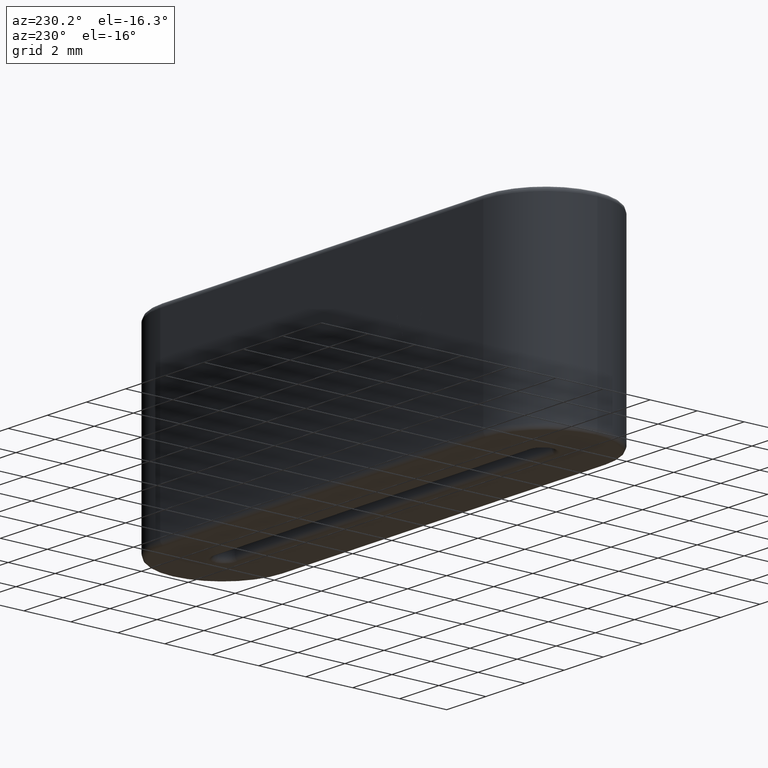
[diagram: clean part render]
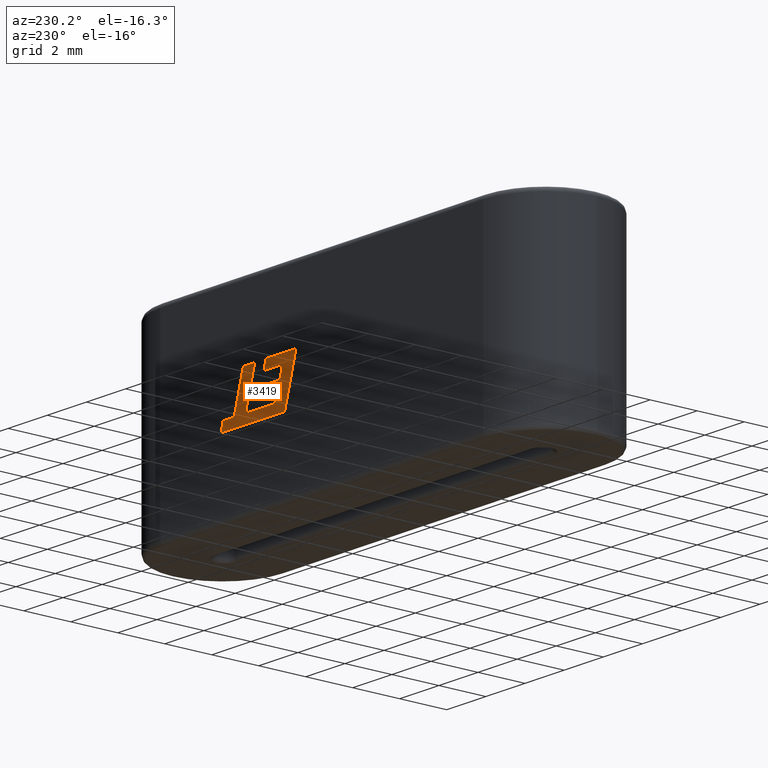
[diagram: same view with one face highlighted and labeled with its STEP entity id]
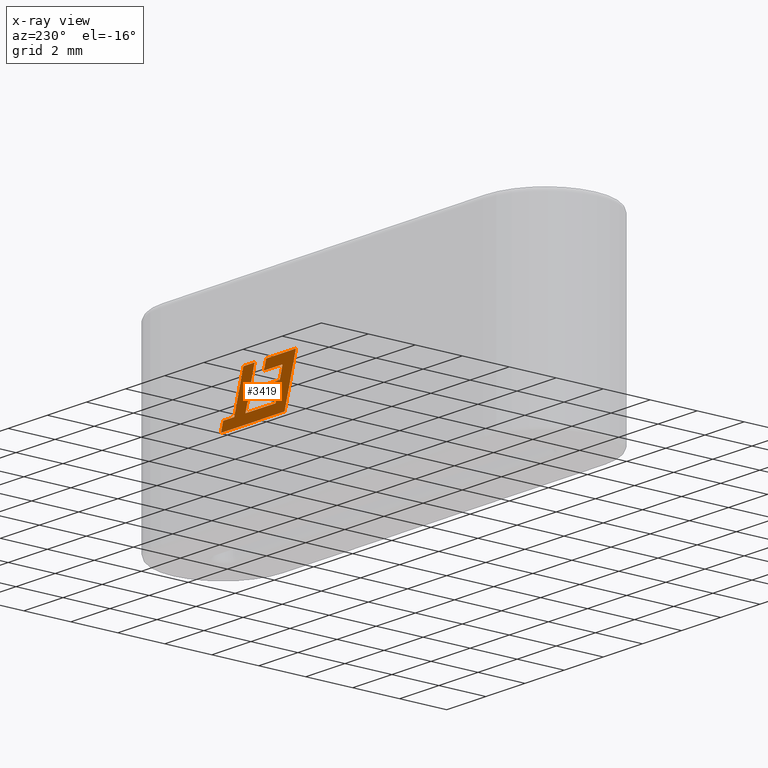
[diagram: x-ray of the same camera — body ghosted, the highlighted face saturated]
A machine part, auxiliary view. The second image highlights one B-rep face of the part: STEP entity #3419.
The next image is the same camera in x-ray: the body ghosted, the highlighted face saturated — about 0% of this face is hidden behind the body in this view.
In plain terms, the highlighted planar face has unit normal (-0, 1, 0).
Its self-contained STEP definition (entity closure, byte-faithful):
#4 = VECTOR ( 'NONE', #315, 1000.000000000000114 ) ;
#39 = EDGE_CURVE ( 'NONE', #2804, #2874, #381, .T. ) ;
#242 = CARTESIAN_POINT ( 'NONE',  ( 2.250616824376399538, 2.651000000000000245, 3.900684055653979243 ) ) ;
#277 = ORIENTED_EDGE ( 'NONE', *, *, #2443, .T. ) ;
#280 = VERTEX_POINT ( 'NONE', #631 ) ;
#282 = VECTOR ( 'NONE', #2204, 1000.000000000000227 ) ;
#315 = DIRECTION ( 'NONE',  ( 0.9999960426590095430, 0.000000000000000000, 0.002813301676023190808 ) ) ;
#322 = CARTESIAN_POINT ( 'NONE',  ( 2.950306790265624812, 2.651000000000000245, 4.774352444056894740 ) ) ;
#335 = DIRECTION ( 'NONE',  ( 1.000000000000000000, 0.000000000000000000, 0.000000000000000000 ) ) ;
#372 = CARTESIAN_POINT ( 'NONE',  ( 2.001247752107452538, 2.651000000000000245, 4.774352444056894740 ) ) ;
#380 = VERTEX_POINT ( 'NONE', #3317 ) ;
#381 = LINE ( 'NONE', #3052, #2031 ) ;
#383 = ORIENTED_EDGE ( 'NONE', *, *, #39, .T. ) ;
#385 = EDGE_CURVE ( 'NONE', #2874, #2325, #3049, .T. ) ;
#478 = LINE ( 'NONE', #1535, #3406 ) ;
#552 = VERTEX_POINT ( 'NONE', #2933 ) ;
#583 = CARTESIAN_POINT ( 'NONE',  ( 5.149774765041634339, 2.651000000000000245, 3.141848782489870651 ) ) ;
#597 = DIRECTION ( 'NONE',  ( 0.2793947940814890951, 0.000000000000000000, -0.9601763114346043571 ) ) ;
#603 = CARTESIAN_POINT ( 'NONE',  ( 3.283648957376353650, 2.651000000000000245, 3.528279502771625165 ) ) ;
#609 = CARTESIAN_POINT ( 'NONE',  ( 2.250616824376399538, 2.651000000000000245, 3.900684055653979243 ) ) ;
#622 = DIRECTION ( 'NONE',  ( -1.000000000000000000, 0.000000000000000000, 0.000000000000000000 ) ) ;
#631 = CARTESIAN_POINT ( 'NONE',  ( 2.841444604677834107, 2.651000000000000245, 5.157999999999998586 ) ) ;
#657 = LINE ( 'NONE', #2240, #1737 ) ;
#669 = ORIENTED_EDGE ( 'NONE', *, *, #2872, .T. ) ;
#681 = EDGE_CURVE ( 'NONE', #2163, #1249, #793, .T. ) ;
#713 = ORIENTED_EDGE ( 'NONE', *, *, #681, .T. ) ;
#714 = EDGE_CURVE ( 'NONE', #3161, #1814, #2203, .T. ) ;
#754 = EDGE_CURVE ( 'NONE', #552, #2186, #3269, .T. ) ;
#793 = LINE ( 'NONE', #1855, #2009 ) ;
#847 = LINE ( 'NONE', #2502, #282 ) ;
#865 = DIRECTION ( 'NONE',  ( 0.9999891854650020395, 0.000000000000000000, 0.004650693823678653943 ) ) ;
#867 = ORIENTED_EDGE ( 'NONE', *, *, #1094, .T. ) ;
#900 = LINE ( 'NONE', #1960, #2580 ) ;
#902 = LINE ( 'NONE', #609, #1233 ) ;
#919 = CARTESIAN_POINT ( 'NONE',  ( -0.01297471066781172300, 2.651000000000000245, -1.857415295886749362 ) ) ;
#922 = EDGE_CURVE ( 'NONE', #1249, #280, #478, .T. ) ;
#923 = CARTESIAN_POINT ( 'NONE',  ( 4.470772761560876774, 2.651000000000000245, 3.531130100608660616 ) ) ;
#1021 = ORIENTED_EDGE ( 'NONE', *, *, #385, .T. ) ;
#1029 = ORIENTED_EDGE ( 'NONE', *, *, #2263, .T. ) ;
#1060 = AXIS2_PLACEMENT_3D ( 'NONE', #919, #2768, #1963 ) ;
#1079 = VECTOR ( 'NONE', #1707, 1000.000000000000114 ) ;
#1094 = EDGE_CURVE ( 'NONE', #280, #2709, #3293, .T. ) ;
#1113 = LINE ( 'NONE', #583, #2736 ) ;
#1163 = DIRECTION ( 'NONE',  ( 0.2762033010290455004, 0.000000000000000000, -0.9610992334304812035 ) ) ;
#1215 = ORIENTED_EDGE ( 'NONE', *, *, #1551, .T. ) ;
#1233 = VECTOR ( 'NONE', #597, 1000.000000000000114 ) ;
#1249 = VERTEX_POINT ( 'NONE', #1932 ) ;
#1266 = EDGE_LOOP ( 'NONE', ( #1839, #1747, #277, #1215, #383, #1021, #3042, #669, #713, #2198, #867, #1029, #1972, #2238, #2047, #3220, #1924 ) ) ;
#1326 = LINE ( 'NONE', #2944, #4 ) ;
#1349 = DIRECTION ( 'NONE',  ( -1.000000000000000000, 0.000000000000000000, -4.942314126707621449E-16 ) ) ;
#1440 = VERTEX_POINT ( 'NONE', #1883 ) ;
#1446 = DIRECTION ( 'NONE',  ( 0.2762437428917147164, 0.000000000000000000, -0.9610876102172871693 ) ) ;
#1460 = VECTOR ( 'NONE', #2759, 1000.000000000000000 ) ;
#1470 = LINE ( 'NONE', #2543, #2400 ) ;
#1535 = CARTESIAN_POINT ( 'NONE',  ( 1.318183208411264351, 2.651000000000000245, 5.157999999999998586 ) ) ;
#1550 = EDGE_CURVE ( 'NONE', #2325, #1440, #2530, .T. ) ;
#1551 = EDGE_CURVE ( 'NONE', #380, #2804, #1982, .T. ) ;
#1564 = CARTESIAN_POINT ( 'NONE',  ( 3.009378533723976901, 2.651000000000000245, 4.273333821253912923 ) ) ;
#1702 = CARTESIAN_POINT ( 'NONE',  ( 1.898099024437930549, 2.651000000000000245, 3.141848782489869762 ) ) ;
#1707 = DIRECTION ( 'NONE',  ( 0.9999999968487351953, 0.000000000000000000, 7.938847109831607095E-05 ) ) ;
#1732 = CARTESIAN_POINT ( 'NONE',  ( 2.841444604677834107, 2.651000000000000245, 5.157999999999998586 ) ) ;
#1737 = VECTOR ( 'NONE', #622, 1000.000000000000000 ) ;
#1747 = ORIENTED_EDGE ( 'NONE', *, *, #714, .T. ) ;
#1772 = VERTEX_POINT ( 'NONE', #2138 ) ;
#1814 = VERTEX_POINT ( 'NONE', #3334 ) ;
#1815 = DIRECTION ( 'NONE',  ( -0.2764273280489767393, 0.000000000000000000, 0.9610348236706635072 ) ) ;
#1839 = ORIENTED_EDGE ( 'NONE', *, *, #3262, .T. ) ;
#1845 = VECTOR ( 'NONE', #865, 1000.000000000000227 ) ;
#1855 = CARTESIAN_POINT ( 'NONE',  ( 1.898099024437930549, 2.651000000000000245, 3.141848782489869762 ) ) ;
#1883 = CARTESIAN_POINT ( 'NONE',  ( 5.149774765041634339, 2.651000000000000245, 3.141848782489870651 ) ) ;
#1924 = ORIENTED_EDGE ( 'NONE', *, *, #3316, .T. ) ;
#1927 = DIRECTION ( 'NONE',  ( 1.000000000000000000, 0.000000000000000000, 0.000000000000000000 ) ) ;
#1932 = CARTESIAN_POINT ( 'NONE',  ( 1.318183208411264351, 2.651000000000000245, 5.157999999999998586 ) ) ;
#1937 = CARTESIAN_POINT ( 'NONE',  ( 5.037889106707927667, 2.651000000000000245, 3.531175123108378777 ) ) ;
#1960 = CARTESIAN_POINT ( 'NONE',  ( 2.001247752107452538, 2.651000000000000245, 4.774352444056894740 ) ) ;
#1963 = DIRECTION ( 'NONE',  ( 0.000000000000000000, -0.000000000000000000, 1.000000000000000000 ) ) ;
#1972 = ORIENTED_EDGE ( 'NONE', *, *, #2162, .T. ) ;
#1982 = LINE ( 'NONE', #2481, #1460 ) ;
#2009 = VECTOR ( 'NONE', #1815, 1000.000000000000227 ) ;
#2031 = VECTOR ( 'NONE', #1446, 1000.000000000000114 ) ;
#2047 = ORIENTED_EDGE ( 'NONE', *, *, #3226, .T. ) ;
#2093 = EDGE_CURVE ( 'NONE', #2287, #3188, #657, .T. ) ;
#2138 = CARTESIAN_POINT ( 'NONE',  ( 2.359736483317013800, 2.651000000000000245, 3.525680247973717929 ) ) ;
#2162 = EDGE_CURVE ( 'NONE', #2926, #552, #900, .T. ) ;
#2163 = VERTEX_POINT ( 'NONE', #1702 ) ;
#2164 = DIRECTION ( 'NONE',  ( -1.000000000000000000, 0.000000000000000000, 0.000000000000000000 ) ) ;
#2186 = VERTEX_POINT ( 'NONE', #2290 ) ;
#2198 = ORIENTED_EDGE ( 'NONE', *, *, #922, .T. ) ;
#2203 = LINE ( 'NONE', #603, #1845 ) ;
#2204 = DIRECTION ( 'NONE',  ( -0.2763173343569515494, 0.000000000000000000, 0.9610664548999036105 ) ) ;
#2238 = ORIENTED_EDGE ( 'NONE', *, *, #754, .T. ) ;
#2240 = CARTESIAN_POINT ( 'NONE',  ( 3.115837634688230828, 2.651000000000000245, 3.900684055653979243 ) ) ;
#2263 = EDGE_CURVE ( 'NONE', #2709, #2926, #1470, .T. ) ;
#2287 = VERTEX_POINT ( 'NONE', #2382 ) ;
#2290 = CARTESIAN_POINT ( 'NONE',  ( 3.009378533723976901, 2.651000000000000245, 4.273333821253912923 ) ) ;
#2325 = VERTEX_POINT ( 'NONE', #2929 ) ;
#2382 = CARTESIAN_POINT ( 'NONE',  ( 3.115837634688230828, 2.651000000000000245, 3.900684055653979243 ) ) ;
#2400 = VECTOR ( 'NONE', #2164, 1000.000000000000000 ) ;
#2431 = CARTESIAN_POINT ( 'NONE',  ( 4.470772761560876774, 2.651000000000000245, 3.531130100608660616 ) ) ;
#2442 = LINE ( 'NONE', #1564, #2681 ) ;
#2443 = EDGE_CURVE ( 'NONE', #1814, #380, #847, .T. ) ;
#2473 = VECTOR ( 'NONE', #1927, 1000.000000000000000 ) ;
#2481 = CARTESIAN_POINT ( 'NONE',  ( 3.428839406945522583, 2.651000000000000245, 5.157999999999998586 ) ) ;
#2502 = CARTESIAN_POINT ( 'NONE',  ( 3.896582664089567327, 2.651000000000000245, 3.531130100603650845 ) ) ;
#2530 = LINE ( 'NONE', #1937, #3131 ) ;
#2543 = CARTESIAN_POINT ( 'NONE',  ( 2.950306790265624812, 2.651000000000000245, 4.774352444056894740 ) ) ;
#2576 = VECTOR ( 'NONE', #2807, 1000.000000000000114 ) ;
#2580 = VECTOR ( 'NONE', #3026, 1000.000000000000114 ) ;
#2681 = VECTOR ( 'NONE', #3434, 1000.000000000000000 ) ;
#2709 = VERTEX_POINT ( 'NONE', #322 ) ;
#2736 = VECTOR ( 'NONE', #1349, 1000.000000000000000 ) ;
#2759 = DIRECTION ( 'NONE',  ( 1.000000000000000000, 0.000000000000000000, 0.000000000000000000 ) ) ;
#2768 = DIRECTION ( 'NONE',  ( -0.000000000000000000, 1.000000000000000000, 0.000000000000000000 ) ) ;
#2804 = VERTEX_POINT ( 'NONE', #2918 ) ;
#2807 = DIRECTION ( 'NONE',  ( 0.2729786930694446667, 0.000000000000000000, -0.9620200793798940886 ) ) ;
#2872 = EDGE_CURVE ( 'NONE', #1440, #2163, #1113, .T. ) ;
#2874 = VERTEX_POINT ( 'NONE', #2431 ) ;
#2918 = CARTESIAN_POINT ( 'NONE',  ( 4.003164371412005984, 2.651000000000000245, 5.157999999999998586 ) ) ;
#2926 = VERTEX_POINT ( 'NONE', #372 ) ;
#2929 = CARTESIAN_POINT ( 'NONE',  ( 5.037889106707927667, 2.651000000000000245, 3.531175123108378777 ) ) ;
#2933 = CARTESIAN_POINT ( 'NONE',  ( 2.144280329770526627, 2.651000000000000245, 4.273333821253912923 ) ) ;
#2944 = CARTESIAN_POINT ( 'NONE',  ( 2.359736483317013800, 2.651000000000000245, 3.525680247973717929 ) ) ;
#3026 = DIRECTION ( 'NONE',  ( 0.2745159998572710980, 0.000000000000000000, -0.9615825319869131249 ) ) ;
#3037 = CARTESIAN_POINT ( 'NONE',  ( 2.144280329770526627, 2.651000000000000245, 4.273333821253912923 ) ) ;
#3042 = ORIENTED_EDGE ( 'NONE', *, *, #1550, .T. ) ;
#3044 = FACE_OUTER_BOUND ( 'NONE', #1266, .T. ) ;
#3049 = LINE ( 'NONE', #923, #1079 ) ;
#3052 = CARTESIAN_POINT ( 'NONE',  ( 4.003164371412005984, 2.651000000000000245, 5.157999999999998586 ) ) ;
#3131 = VECTOR ( 'NONE', #1163, 1000.000000000000114 ) ;
#3135 = CARTESIAN_POINT ( 'NONE',  ( 3.283648957376353650, 2.651000000000000245, 3.528279502771625165 ) ) ;
#3161 = VERTEX_POINT ( 'NONE', #3135 ) ;
#3188 = VERTEX_POINT ( 'NONE', #242 ) ;
#3220 = ORIENTED_EDGE ( 'NONE', *, *, #2093, .T. ) ;
#3226 = EDGE_CURVE ( 'NONE', #2186, #2287, #2442, .T. ) ;
#3259 = PLANE ( 'NONE',  #1060 ) ;
#3262 = EDGE_CURVE ( 'NONE', #1772, #3161, #1326, .T. ) ;
#3269 = LINE ( 'NONE', #3037, #2473 ) ;
#3293 = LINE ( 'NONE', #1732, #2576 ) ;
#3316 = EDGE_CURVE ( 'NONE', #3188, #1772, #902, .T. ) ;
#3317 = CARTESIAN_POINT ( 'NONE',  ( 3.428839406945522583, 2.651000000000000245, 5.157999999999998586 ) ) ;
#3334 = CARTESIAN_POINT ( 'NONE',  ( 3.896582664089567327, 2.651000000000000245, 3.531130100603650845 ) ) ;
#3406 = VECTOR ( 'NONE', #335, 1000.000000000000000 ) ;
#3419 = ADVANCED_FACE ( 'NONE', ( #3044 ), #3259, .T. ) ;
#3434 = DIRECTION ( 'NONE',  ( 0.2746918797667246559, 0.000000000000000000, -0.9615323037684294638 ) ) ;